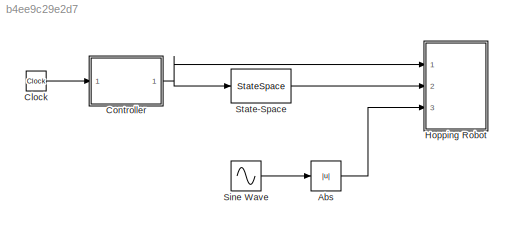
MODEL slx_b4ee9c29e2d7
KIND model
CONFIG AbsTol = auto
CONFIG EnableMultiTasking = off
CONFIG FixedStep = tau/1000
CONFIG MaxStep = auto
CONFIG MinStep = auto
CONFIG RelTol = 1e-3
CONFIG SampleTimeConstraint = Unconstrained
CONFIG Solver = FixedStepAuto
CONFIG SolverName = FixedStepAuto
CONFIG StartTime = 0.0
CONFIG StopTime = (t_span-1)*tau
BLOCK [Abs] Abs
  SaturateOnIntegerOverflow = off
BLOCK [Clock] Clock
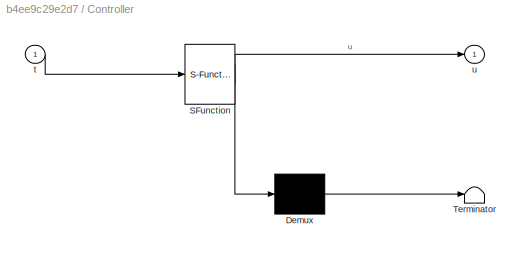
BLOCK [SubSystem] Controller
  ErrorFcn = Stateflow.Translate.translate
  PermitHierarchicalResolution = ExplicitOnly
  Ports = [1, 1]
  RequestExecContextInheritance = off
  SFBlockType = MATLAB Function
  TreatAsAtomicUnit = on
  Variant = off
BLOCK [Demux] Controller/ Demux 
  Outputs = 1
  Ports = [1, 1]
BLOCK [S-Function] Controller/ SFunction 
  EnableBusSupport = on
  FunctionName = sf_sfun
  PortCounts = [1 2]
  Ports = [1, 2]
  SFcnIsStateOwnerBlock = off
  SFunctionDeploymentMode = off
  Tag = Stateflow S-Function hopping_robot 2
BLOCK [Terminator] Controller/ Terminator 
BLOCK [Inport] Controller/t
  IconDisplay = Port number
BLOCK [Outport] Controller/u
  IconDisplay = Port number
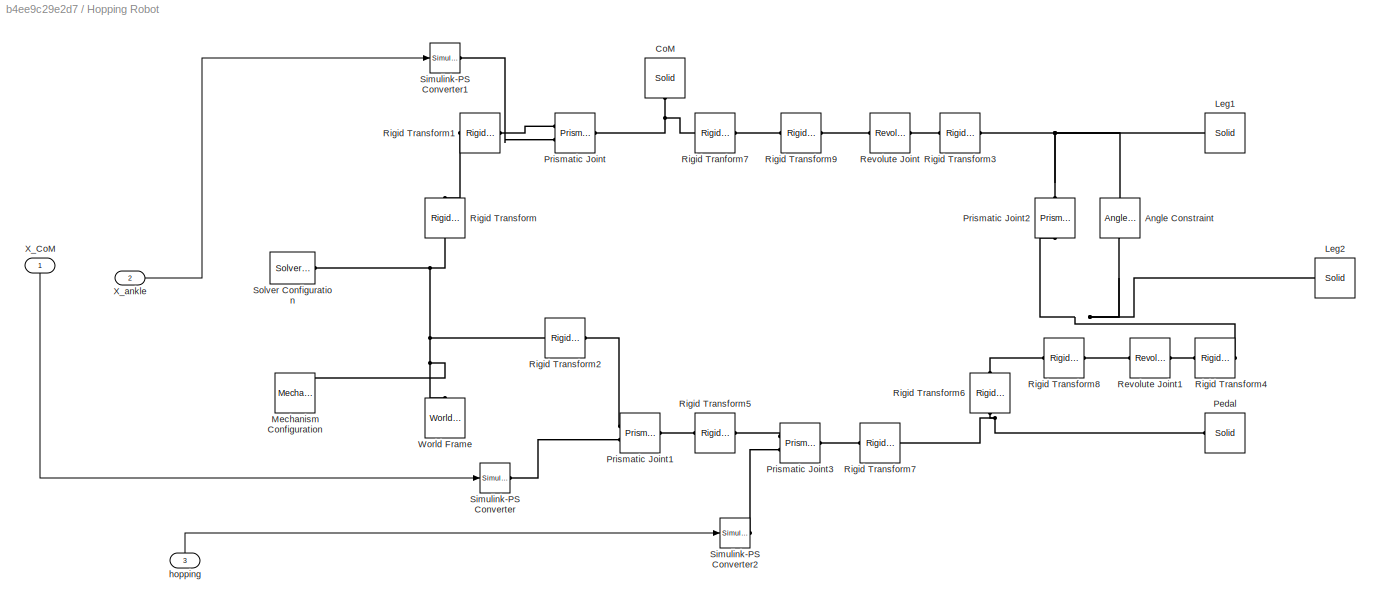
BLOCK [SubSystem] Hopping Robot
  Ports = [3]
  RequestExecContextInheritance = off
  Variant = off
BLOCK [Reference] Hopping Robot/Angle Constraint  REF=sm_lib/Constraints/Angle
Constraint
  Ports = [0, 0, 0, 0, 0, 1, 1]
  SourceBlock = sm_lib/Constraints/Angle\nConstraint
  SourceProductBaseCode = MS
  SourceProductName = Simscape Multibody
  SourceType = Angle\nConstraint
BLOCK [Reference] Hopping Robot/CoM  REF=sm_lib/Body Elements/Solid
  Ports = [0, 0, 0, 0, 0, 0, 1]
  SourceBlock = sm_lib/Body Elements/Solid
  SourceProductBaseCode = MS
  SourceProductName = Simscape Multibody
  SourceType = Solid
BLOCK [Reference] Hopping Robot/Leg1  REF=sm_lib/Body Elements/Solid
  Ports = [0, 0, 0, 0, 0, 0, 1]
  SourceBlock = sm_lib/Body Elements/Solid
  SourceProductBaseCode = MS
  SourceProductName = Simscape Multibody
  SourceType = Solid
BLOCK [Reference] Hopping Robot/Leg2  REF=sm_lib/Body Elements/Solid
  Ports = [0, 0, 0, 0, 0, 0, 1]
  SourceBlock = sm_lib/Body Elements/Solid
  SourceProductBaseCode = MS
  SourceProductName = Simscape Multibody
  SourceType = Solid
BLOCK [Reference] Hopping Robot/Mechanism Configuration  REF=sm_lib/Utilities/Mechanism
Configuration
  Ports = [0, 0, 0, 0, 0, 0, 1]
  SourceBlock = sm_lib/Utilities/Mechanism\nConfiguration
  SourceProductBaseCode = MS
  SourceProductName = Simscape Multibody
  SourceType = Mechanism\nConfiguration
BLOCK [Reference] Hopping Robot/Pedal  REF=sm_lib/Body Elements/Solid
  Ports = [0, 0, 0, 0, 0, 0, 1]
  SourceBlock = sm_lib/Body Elements/Solid
  SourceProductBaseCode = MS
  SourceProductName = Simscape Multibody
  SourceType = Solid
BLOCK [Reference] Hopping Robot/Prismatic Joint  REF=sm_lib/Joints/Prismatic
Joint
  Ports = [0, 0, 0, 0, 0, 2, 1]
  SourceBlock = sm_lib/Joints/Prismatic\nJoint
  SourceProductBaseCode = MS
  SourceProductName = Simscape Multibody
  SourceType = Prismatic\nJoint
BLOCK [Reference] Hopping Robot/Prismatic Joint1  REF=sm_lib/Joints/Prismatic
Joint
  Ports = [0, 0, 0, 0, 0, 2, 1]
  SourceBlock = sm_lib/Joints/Prismatic\nJoint
  SourceProductBaseCode = MS
  SourceProductName = Simscape Multibody
  SourceType = Prismatic\nJoint
BLOCK [Reference] Hopping Robot/Prismatic Joint2  REF=sm_lib/Joints/Prismatic
Joint
  Ports = [0, 0, 0, 0, 0, 1, 1]
  SourceBlock = sm_lib/Joints/Prismatic\nJoint
  SourceProductBaseCode = MS
  SourceProductName = Simscape Multibody
  SourceType = Prismatic\nJoint
BLOCK [Reference] Hopping Robot/Prismatic Joint3  REF=sm_lib/Joints/Prismatic
Joint
  Ports = [0, 0, 0, 0, 0, 2, 1]
  SourceBlock = sm_lib/Joints/Prismatic\nJoint
  SourceProductBaseCode = MS
  SourceProductName = Simscape Multibody
  SourceType = Prismatic\nJoint
BLOCK [Reference] Hopping Robot/Revolute Joint  REF=sm_lib/Joints/Revolute Joint
  Ports = [0, 0, 0, 0, 0, 1, 1]
  SourceBlock = sm_lib/Joints/Revolute Joint
  SourceProductBaseCode = MS
  SourceProductName = Simscape Multibody
  SourceType = Revolute Joint
BLOCK [Reference] Hopping Robot/Revolute Joint1  REF=sm_lib/Joints/Revolute Joint
  Ports = [0, 0, 0, 0, 0, 1, 1]
  SourceBlock = sm_lib/Joints/Revolute Joint
  SourceProductBaseCode = MS
  SourceProductName = Simscape Multibody
  SourceType = Revolute Joint
BLOCK [Reference] Hopping Robot/Rigid Tranform7  REF=sm_lib/Frames and
Transforms/Rigid
Transform
  Ports = [0, 0, 0, 0, 0, 1, 1]
  SourceBlock = sm_lib/Frames and\nTransforms/Rigid\nTransform
  SourceProductBaseCode = MS
  SourceProductName = Simscape Multibody
  SourceType = Rigid\nTransform
BLOCK [Reference] Hopping Robot/Rigid Transform  REF=sm_lib/Frames and
Transforms/Rigid
Transform
  Ports = [0, 0, 0, 0, 0, 1, 1]
  SourceBlock = sm_lib/Frames and\nTransforms/Rigid\nTransform
  SourceProductBaseCode = MS
  SourceProductName = Simscape Multibody
  SourceType = Rigid\nTransform
BLOCK [Reference] Hopping Robot/Rigid Transform1  REF=sm_lib/Frames and
Transforms/Rigid
Transform
  Ports = [0, 0, 0, 0, 0, 1, 1]
  SourceBlock = sm_lib/Frames and\nTransforms/Rigid\nTransform
  SourceProductBaseCode = MS
  SourceProductName = Simscape Multibody
  SourceType = Rigid\nTransform
BLOCK [Reference] Hopping Robot/Rigid Transform2  REF=sm_lib/Frames and
Transforms/Rigid
Transform
  Ports = [0, 0, 0, 0, 0, 1, 1]
  SourceBlock = sm_lib/Frames and\nTransforms/Rigid\nTransform
  SourceProductBaseCode = MS
  SourceProductName = Simscape Multibody
  SourceType = Rigid\nTransform
BLOCK [Reference] Hopping Robot/Rigid Transform3  REF=sm_lib/Frames and
Transforms/Rigid
Transform
  Ports = [0, 0, 0, 0, 0, 1, 1]
  SourceBlock = sm_lib/Frames and\nTransforms/Rigid\nTransform
  SourceProductBaseCode = MS
  SourceProductName = Simscape Multibody
  SourceType = Rigid\nTransform
BLOCK [Reference] Hopping Robot/Rigid Transform4  REF=sm_lib/Frames and
Transforms/Rigid
Transform
  Ports = [0, 0, 0, 0, 0, 1, 1]
  SourceBlock = sm_lib/Frames and\nTransforms/Rigid\nTransform
  SourceProductBaseCode = MS
  SourceProductName = Simscape Multibody
  SourceType = Rigid\nTransform
BLOCK [Reference] Hopping Robot/Rigid Transform5  REF=sm_lib/Frames and
Transforms/Rigid
Transform
  Ports = [0, 0, 0, 0, 0, 1, 1]
  SourceBlock = sm_lib/Frames and\nTransforms/Rigid\nTransform
  SourceProductBaseCode = MS
  SourceProductName = Simscape Multibody
  SourceType = Rigid\nTransform
BLOCK [Reference] Hopping Robot/Rigid Transform6  REF=sm_lib/Frames and
Transforms/Rigid
Transform
  Ports = [0, 0, 0, 0, 0, 1, 1]
  SourceBlock = sm_lib/Frames and\nTransforms/Rigid\nTransform
  SourceProductBaseCode = MS
  SourceProductName = Simscape Multibody
  SourceType = Rigid\nTransform
BLOCK [Reference] Hopping Robot/Rigid Transform7  REF=sm_lib/Frames and
Transforms/Rigid
Transform
  Ports = [0, 0, 0, 0, 0, 1, 1]
  SourceBlock = sm_lib/Frames and\nTransforms/Rigid\nTransform
  SourceProductBaseCode = MS
  SourceProductName = Simscape Multibody
  SourceType = Rigid\nTransform
BLOCK [Reference] Hopping Robot/Rigid Transform8  REF=sm_lib/Frames and
Transforms/Rigid
Transform
  Ports = [0, 0, 0, 0, 0, 1, 1]
  SourceBlock = sm_lib/Frames and\nTransforms/Rigid\nTransform
  SourceProductBaseCode = MS
  SourceProductName = Simscape Multibody
  SourceType = Rigid\nTransform
BLOCK [Reference] Hopping Robot/Rigid Transform9  REF=sm_lib/Frames and
Transforms/Rigid
Transform
  Ports = [0, 0, 0, 0, 0, 1, 1]
  SourceBlock = sm_lib/Frames and\nTransforms/Rigid\nTransform
  SourceProductBaseCode = MS
  SourceProductName = Simscape Multibody
  SourceType = Rigid\nTransform
BLOCK [Reference] Hopping Robot/Simulink-PS Converter  REF=nesl_utility/Simulink-PS
Converter
  Ports = [1, 0, 0, 0, 0, 0, 1]
  SourceBlock = nesl_utility/Simulink-PS\nConverter
  SourceProductBaseCode = SS
  SourceProductName = Simscape
  SourceType = Simulink-PS\nConverter
BLOCK [Reference] Hopping Robot/Simulink-PS Converter1  REF=nesl_utility/Simulink-PS
Converter
  Ports = [1, 0, 0, 0, 0, 0, 1]
  SourceBlock = nesl_utility/Simulink-PS\nConverter
  SourceProductBaseCode = SS
  SourceProductName = Simscape
  SourceType = Simulink-PS\nConverter
BLOCK [Reference] Hopping Robot/Simulink-PS Converter2  REF=nesl_utility/Simulink-PS
Converter
  Ports = [1, 0, 0, 0, 0, 0, 1]
  SourceBlock = nesl_utility/Simulink-PS\nConverter
  SourceProductBaseCode = SS
  SourceProductName = Simscape
  SourceType = Simulink-PS\nConverter
BLOCK [Reference] Hopping Robot/Solver Configuration  REF=nesl_utility/Solver
Configuration
  Ports = [0, 0, 0, 0, 0, 0, 1]
  SourceBlock = nesl_utility/Solver\nConfiguration
  SourceProductBaseCode = SS
  SourceProductName = Simscape
  SourceType = Solver\nConfiguration
BLOCK [Reference] Hopping Robot/World Frame  REF=sm_lib/Frames and
Transforms/World Frame
  Ports = [0, 0, 0, 0, 0, 0, 1]
  SourceBlock = sm_lib/Frames and\nTransforms/World Frame
  SourceProductBaseCode = MS
  SourceProductName = Simscape Multibody
  SourceType = World Frame
BLOCK [Inport] Hopping Robot/X_CoM
  IconDisplay = Port number
BLOCK [Inport] Hopping Robot/X_ankle
  IconDisplay = Port number
  Port = 2
BLOCK [Inport] Hopping Robot/hopping
  IconDisplay = Port number
  Port = 3
BLOCK [Sin] Sine Wave
  Amplitude = 0.1
  Frequency = fre_hopping*3
  Ports = [0, 1]
  SampleTime = 0
BLOCK [StateSpace] State-Space
  A = A
  B = B
  C = C
  D = D
  Ports = [1, 1]
  X0 = x0
LINE Abs:1 -> Hopping Robot:3
LINE Clock:1 -> Controller:1
NET Controller:1 -> Hopping Robot:1, State-Space:1
LINE Hopping Robot/X_CoM:1 -> Hopping Robot/Simulink-PS Converter:1
LINE Hopping Robot/X_ankle:1 -> Hopping Robot/Simulink-PS Converter1:1
LINE Hopping Robot/hopping:1 -> Hopping Robot/Simulink-PS Converter2:1
LINE Sine Wave:1 -> Abs:1
LINE State-Space:1 -> Hopping Robot:2
PNET net1: Hopping Robot/Angle Constraint:LConn1 -- Hopping Robot/Leg2:RConn1 -- Hopping Robot/Prismatic Joint2:LConn1 -- Hopping Robot/Rigid Transform4:RConn1
PNET net2: Hopping Robot/Angle Constraint:RConn1 -- Hopping Robot/Leg1:RConn1 -- Hopping Robot/Prismatic Joint2:RConn1 -- Hopping Robot/Rigid Transform3:RConn1
PNET net3: Hopping Robot/CoM:RConn1 -- Hopping Robot/Prismatic Joint:RConn1 -- Hopping Robot/Rigid Tranform7:LConn1
PNET net4: Hopping Robot/Mechanism Configuration:RConn1 -- Hopping Robot/Rigid Transform2:LConn1 -- Hopping Robot/Rigid Transform:LConn1 -- Hopping Robot/Solver Configuration:RConn1 -- Hopping Robot/World Frame:RConn1
PNET net5: Hopping Robot/Pedal:RConn1 -- Hopping Robot/Rigid Transform6:LConn1 -- Hopping Robot/Rigid Transform7:RConn1
PLINE Hopping Robot/Prismatic Joint1:LConn1 -- Hopping Robot/Rigid Transform2:RConn1
PLINE Hopping Robot/Prismatic Joint1:LConn2 -- Hopping Robot/Simulink-PS Converter:RConn1
PLINE Hopping Robot/Prismatic Joint1:RConn1 -- Hopping Robot/Rigid Transform5:LConn1
PLINE Hopping Robot/Prismatic Joint3:LConn1 -- Hopping Robot/Rigid Transform5:RConn1
PLINE Hopping Robot/Prismatic Joint3:LConn2 -- Hopping Robot/Simulink-PS Converter2:RConn1
PLINE Hopping Robot/Prismatic Joint3:RConn1 -- Hopping Robot/Rigid Transform7:LConn1
PLINE Hopping Robot/Prismatic Joint:LConn1 -- Hopping Robot/Rigid Transform1:RConn1
PLINE Hopping Robot/Prismatic Joint:LConn2 -- Hopping Robot/Simulink-PS Converter1:RConn1
PLINE Hopping Robot/Revolute Joint1:LConn1 -- Hopping Robot/Rigid Transform8:RConn1
PLINE Hopping Robot/Revolute Joint1:RConn1 -- Hopping Robot/Rigid Transform4:LConn1
PLINE Hopping Robot/Revolute Joint:LConn1 -- Hopping Robot/Rigid Transform9:RConn1
PLINE Hopping Robot/Revolute Joint:RConn1 -- Hopping Robot/Rigid Transform3:LConn1
PLINE Hopping Robot/Rigid Tranform7:RConn1 -- Hopping Robot/Rigid Transform9:LConn1
PLINE Hopping Robot/Rigid Transform1:LConn1 -- Hopping Robot/Rigid Transform:RConn1
PLINE Hopping Robot/Rigid Transform6:RConn1 -- Hopping Robot/Rigid Transform8:LConn1
note: NET lines group one-source signal fan-out (src -> all destinations, sorted); 1:1 wires keep LINE; PNET lines group multi-terminal physical nets as a canonical sorted terminal list (undirected conserving connections); 2-terminal nets keep the pairwise PLINE form
CHART Controller states=1 transitions=1
  STATE_LABEL 'eML_blk_kernel()'
  STATE_LABEL "SCRIPT:\nfunction u = fcn(t)\nvar = load('cont');\nt_l =var.t_list;\nu_l =var.u_list;\nidx=floor(t/0.08)+1;\n% idx = find(t<=t_l);\nu = double(u_l(idx(1)));\n% u = zeros(1,1);\n% tmp = u;\n% if(~isempty(x))\n%     var=load('cont');\n%     M_X = var.M_X;\n%     u_list = var.u_list;\n% \n%     idx_x = mapping_simu(x,M_X,M_X.gridsize/2);\n% \n%     tmp = u_list(idx_x);\n% else\n%     tmp = 0;\n% end\n% \n% u = tmp(1);"
